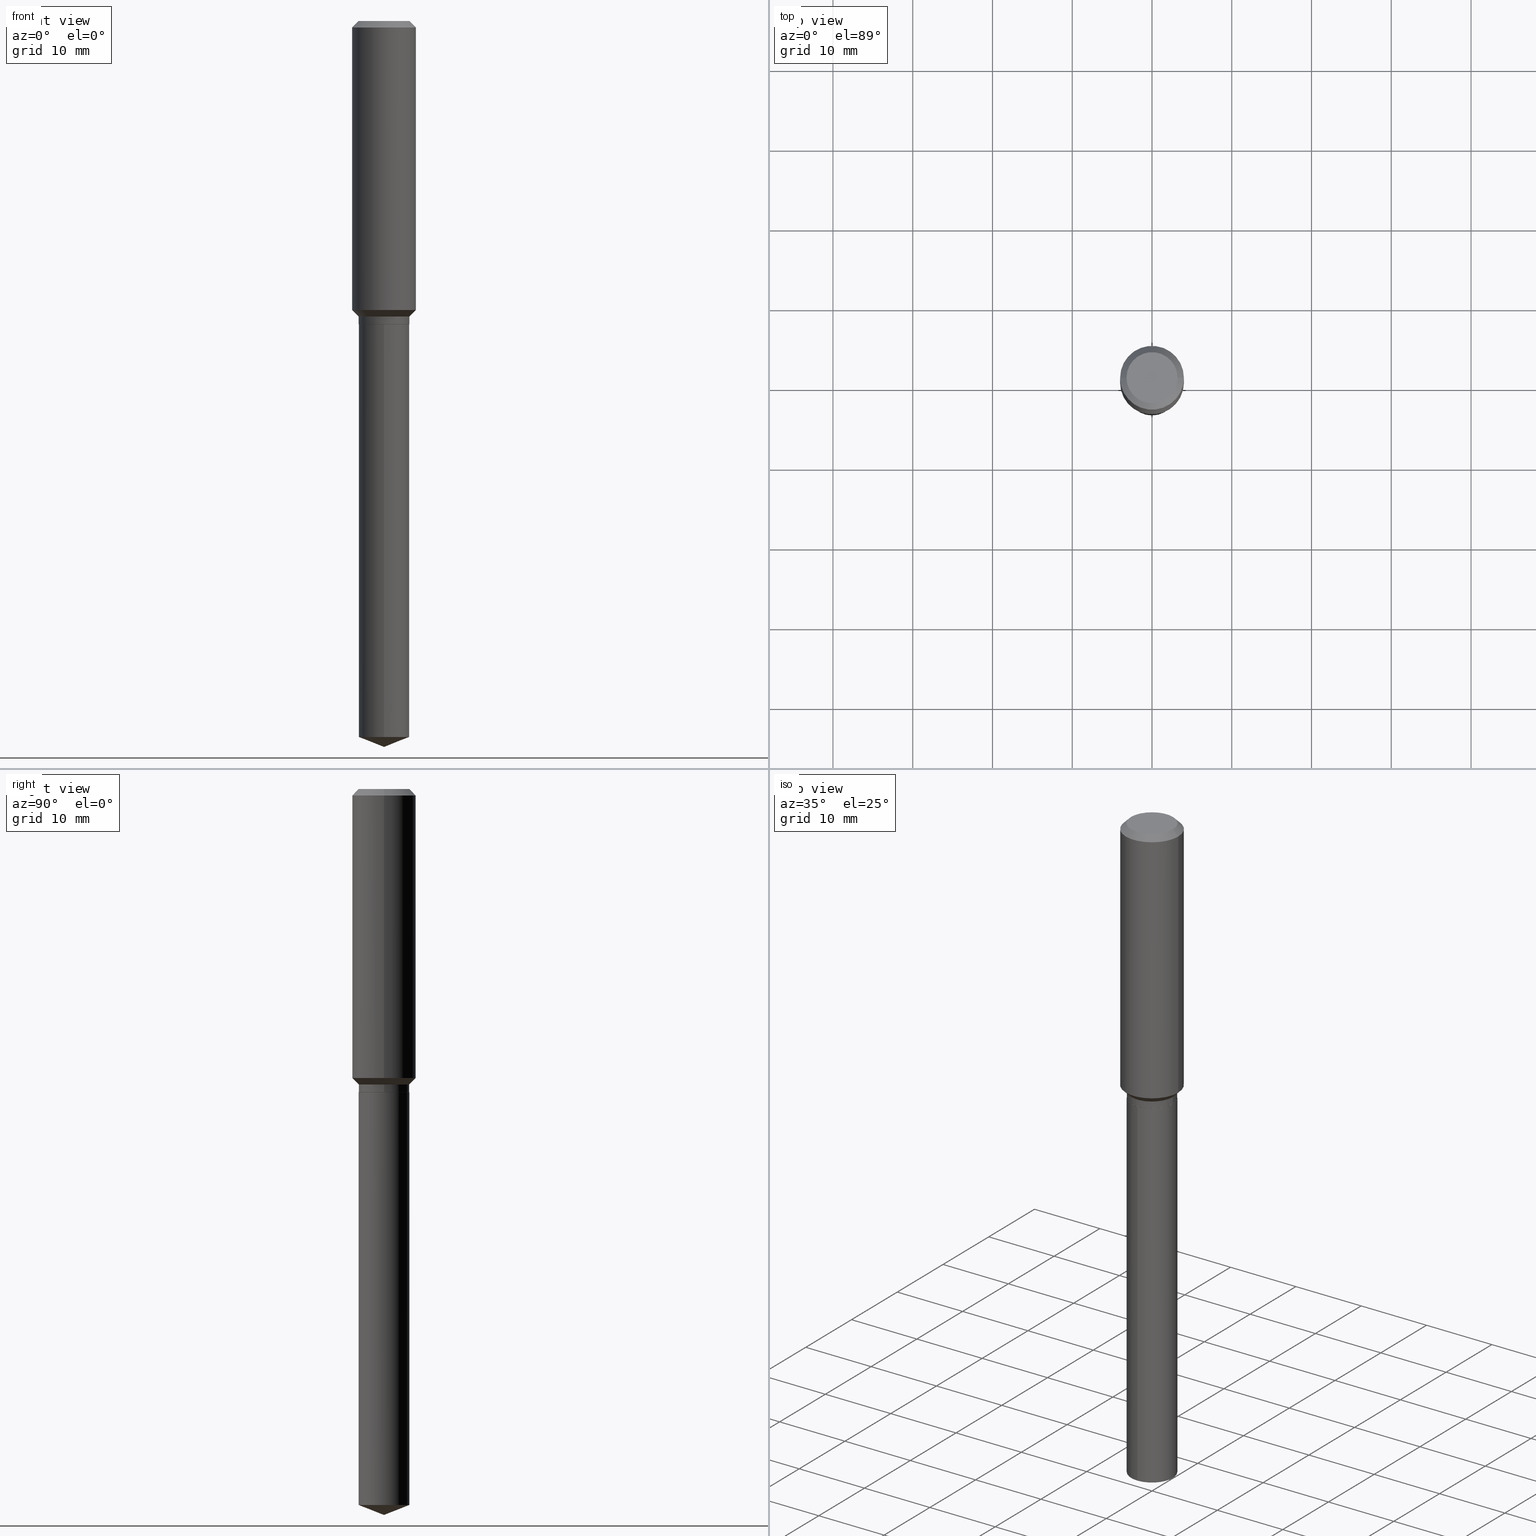
[diagram: canonical four-view strip — front | top / right | iso, engineering-drawing reading convention]
A machine part, canonical four-view strip (front | top / right | iso — engineering-drawing reading convention). The complete STEP part file that produces these views, byte-faithful:
ISO-10303-21;
HEADER;
FILE_DESCRIPTION (( 'STEP AP203' ),
    '1' );
FILE_NAME ('56446.STEP',
    '2024-04-24T17:53:05',
    ( '' ),
    ( '' ),
    'SwSTEP 2.0',
    'SolidWorks 2023',
    '' );
FILE_SCHEMA (( 'CONFIG_CONTROL_DESIGN' ));
ENDSEC;

DATA;
#1 = APPLICATION_PROTOCOL_DEFINITION ( 'international standard', 'config_control_design', 1994, #52 ) ;
#2 = DIRECTION ( 'NONE',  ( 1.000000000000000000, -6.982962677686262766E-15, 0.000000000000000000 ) ) ;
#3 = CARTESIAN_POINT ( 'NONE',  ( 0.1250000000000000000, -8.728703347107833388E-16, 6.095220969744919741E-30 ) ) ;
#4 = EDGE_CURVE ( 'NONE', #142, #254, #487, .T. ) ;
#5 = AXIS2_PLACEMENT_3D ( 'NONE', #301, #386, #200 ) ;
#6 =( CONVERSION_BASED_UNIT ( 'INCH', #85 ) LENGTH_UNIT ( ) NAMED_UNIT ( #192 ) );
#7 = AXIS2_PLACEMENT_3D ( 'NONE', #308, #453, #195 ) ;
#8 = DIRECTION ( 'NONE',  ( -2.445468806185136597E-29, 3.491481338843145583E-15, 1.000000000000000000 ) ) ;
#9 = CARTESIAN_POINT ( 'NONE',  ( -8.728703347106965641E-16, -0.1250000000000122957, -3.533761190548131204 ) ) ;
#10 = DIRECTION ( 'NONE',  ( 1.000000000000000000, -6.982962677686262766E-15, 0.000000000000000000 ) ) ;
#11 = CYLINDRICAL_SURFACE ( 'NONE', #148, 0.1575000000000000844 ) ;
#12 = LINE ( 'NONE', #171, #389 ) ;
#13 = ADVANCED_FACE ( 'NONE', ( #462 ), #449, .T. ) ;
#14 = CC_DESIGN_APPROVAL ( #280, ( #43 ) ) ;
#15 = LOCAL_TIME ( 13, 53, 5.000000000000000000, #94 ) ;
#16 = DIRECTION ( 'NONE',  ( -2.445483652818804664E-29, 3.491460077618715012E-15, 1.000000000000000000 ) ) ;
#17 = APPROVAL_ROLE ( '' ) ;
#18 = DIRECTION ( 'NONE',  ( 1.000000000000000000, -6.982962677686267499E-15, 0.000000000000000000 ) ) ;
#19 = EDGE_LOOP ( 'NONE', ( #344, #110, #176, #313 ) ) ;
#20 = CC_DESIGN_PERSON_AND_ORGANIZATION_ASSIGNMENT ( #357, #58, ( #194 ) ) ;
#21 = CARTESIAN_POINT ( 'NONE',  ( 3.658176787172346501E-29, -5.222906934775461847E-15, -1.495900000000000230 ) ) ;
#22 = CIRCLE ( 'NONE', #147, 0.1250000000000000000 ) ;
#23 = AXIS2_PLACEMENT_3D ( 'NONE', #465, #331, #98 ) ;
#24 = VERTEX_POINT ( 'NONE', #260 ) ;
#25 = DIRECTION ( 'NONE',  ( -2.445468806185136597E-29, 3.491481338843145583E-15, 1.000000000000000000 ) ) ;
#26 = ORIENTED_EDGE ( 'NONE', *, *, #454, .T. ) ;
#27 = DIRECTION ( 'NONE',  ( -2.445468806185136597E-29, 3.491481338843145583E-15, 1.000000000000000000 ) ) ;
#28 = EDGE_CURVE ( 'NONE', #429, #254, #22, .T. ) ;
#29 = ORIENTED_EDGE ( 'NONE', *, *, #237, .T. ) ;
#30 = EDGE_CURVE ( 'NONE', #295, #24, #93, .T. ) ;
#31 = DIRECTION ( 'NONE',  ( -2.445468806185136877E-29, 3.491481338843145188E-15, 1.000000000000000000 ) ) ;
#32 = VERTEX_POINT ( 'NONE', #238 ) ;
#33 = AXIS2_PLACEMENT_3D ( 'NONE', #168, #393, #141 ) ;
#34 = AXIS2_PLACEMENT_3D ( 'NONE', #293, #27, #407 ) ;
#35 = CARTESIAN_POINT ( 'NONE',  ( 0.000000000000000000, 0.000000000000000000, 0.000000000000000000 ) ) ;
#36 = ORIENTED_EDGE ( 'NONE', *, *, #161, .F. ) ;
#37 = DIRECTION ( 'NONE',  ( -2.445468806185136597E-29, 3.491481338843145583E-15, 1.000000000000000000 ) ) ;
#38 = PERSON_AND_ORGANIZATION ( #300, #483 ) ;
#39 = CIRCLE ( 'NONE', #340, 0.1250000000000000000 ) ;
#40 =( LENGTH_UNIT ( ) NAMED_UNIT ( * ) SI_UNIT ( $, .METRE. ) );
#41 = DATE_TIME_ROLE ( 'creation_date' ) ;
#42 = ORIENTED_EDGE ( 'NONE', *, *, #454, .F. ) ;
#43 = PRODUCT_DEFINITION ( 'UNKNOWN', '', #194, #323 ) ;
#44 = CARTESIAN_POINT ( 'NONE',  ( 3.566716253821021991E-29, -5.092325532702728647E-15, -1.458500000000000352 ) ) ;
#45 = AXIS2_PLACEMENT_3D ( 'NONE', #399, #95, #241 ) ;
#46 = PERSON_AND_ORGANIZATION ( #300, #483 ) ;
#47 = VERTEX_POINT ( 'NONE', #236 ) ;
#48 = VERTEX_POINT ( 'NONE', #204 ) ;
#49 = SECURITY_CLASSIFICATION_LEVEL ( 'unclassified' ) ;
#50 = ORIENTED_EDGE ( 'NONE', *, *, #144, .T. ) ;
#51 = ADVANCED_FACE ( 'NONE', ( #83 ), #124, .T. ) ;
#52 = APPLICATION_CONTEXT ( 'configuration controlled 3d designs of mechanical parts and assemblies' ) ;
#53 = ADVANCED_FACE ( 'NONE', ( #267 ), #224, .T. ) ;
#54 = DIRECTION ( 'NONE',  ( -2.445483652818804664E-29, 3.491460077618715012E-15, 1.000000000000000000 ) ) ;
#55 = DIRECTION ( 'NONE',  ( 1.000000000000000000, -6.982962677686262766E-15, 0.000000000000000000 ) ) ;
#56 = CLOSED_SHELL ( 'NONE', ( #51, #70, #288, #155, #102 ) ) ;
#57 = LOCAL_TIME ( 13, 53, 5.000000000000000000, #203 ) ;
#58 = PERSON_AND_ORGANIZATION_ROLE ( 'creator' ) ;
#59 = CARTESIAN_POINT ( 'NONE',  ( 0.1575000000000000011, -1.209798283909146741E-15, -0.03150000000000018757 ) ) ;
#60 = ORIENTED_EDGE ( 'NONE', *, *, #28, .F. ) ;
#61 = ADVANCED_BREP_SHAPE_REPRESENTATION ( '56446', ( #468, #159, #466 ), #131 ) ;
#62 = CARTESIAN_POINT ( 'NONE',  ( -8.728703347107465582E-16, -0.1250000000000052180, -1.496399999999999730 ) ) ;
#63 = EDGE_LOOP ( 'NONE', ( #277, #149 ) ) ;
#64 = FACE_OUTER_BOUND ( 'NONE', #19, .T. ) ;
#65 = CIRCLE ( 'NONE', #23, 0.1260000000000000009 ) ;
#66 = CONICAL_SURFACE ( 'NONE', #34, 0.1244999999999999996, 0.7853981633975507526 ) ;
#67 = ORIENTED_EDGE ( 'NONE', *, *, #315, .F. ) ;
#68 = CARTESIAN_POINT ( 'NONE',  ( 7.703226739483226095E-31, -1.099816621735597415E-16, -0.03150000000000018757 ) ) ;
#69 = ORIENTED_EDGE ( 'NONE', *, *, #207, .F. ) ;
#70 = ADVANCED_FACE ( 'NONE', ( #423 ), #305, .T. ) ;
#71 = CARTESIAN_POINT ( 'NONE',  ( -0.1250000000000000000, -4.269437814038970015E-15, -1.458500000000000352 ) ) ;
#72 = ORIENTED_EDGE ( 'NONE', *, *, #306, .F. ) ;
#73 = DIRECTION ( 'NONE',  ( -2.445483652818804384E-29, 3.491460077618715012E-15, 1.000000000000000000 ) ) ;
#74 = ORIENTED_EDGE ( 'NONE', *, *, #410, .F. ) ;
#75 = VECTOR ( 'NONE', #31, 39.37007874015748143 ) ;
#76 = CARTESIAN_POINT ( 'NONE',  ( 8.641733007948351542E-29, -1.233801793593342010E-14, -3.533761190548131648 ) ) ;
#77 = FACE_OUTER_BOUND ( 'NONE', #63, .T. ) ;
#78 = MECHANICAL_CONTEXT ( 'NONE', #417, 'mechanical' ) ;
#79 = VECTOR ( 'NONE', #235, 39.37007874015748854 ) ;
#80 = AXIS2_PLACEMENT_3D ( 'NONE', #339, #405, #189 ) ;
#81 = CC_DESIGN_PERSON_AND_ORGANIZATION_ASSIGNMENT ( #324, #101, ( #163 ) ) ;
#82 = DATE_AND_TIME ( #266, #297 ) ;
#83 = FACE_OUTER_BOUND ( 'NONE', #182, .T. ) ;
#84 = EDGE_CURVE ( 'NONE', #24, #441, #395, .T. ) ;
#85 = LENGTH_MEASURE_WITH_UNIT ( LENGTH_MEASURE( 0.02539999999999999897 ), #40 );
#86 = EDGE_LOOP ( 'NONE', ( #67, #408, #249 ) ) ;
#87 = APPROVAL_DATE_TIME ( #310, #280 ) ;
#88 = EDGE_LOOP ( 'NONE', ( #460, #190, #470, #373 ) ) ;
#89 = EDGE_LOOP ( 'NONE', ( #391, #217 ) ) ;
#90 = AXIS2_PLACEMENT_3D ( 'NONE', #320, #54, #291 ) ;
#91 = COORDINATED_UNIVERSAL_TIME_OFFSET ( 5, 0, .BEHIND. ) ;
#92 = AXIS2_PLACEMENT_3D ( 'NONE', #420, #385, #312 ) ;
#93 = LINE ( 'NONE', #455, #79 ) ;
#94 = COORDINATED_UNIVERSAL_TIME_OFFSET ( 5, 0, .BEHIND. ) ;
#95 = DIRECTION ( 'NONE',  ( -2.438088387897960049E-29, 3.491481338843145188E-15, 1.000000000000000000 ) ) ;
#96 = FACE_OUTER_BOUND ( 'NONE', #184, .T. ) ;
#97 = PERSON_AND_ORGANIZATION_ROLE ( 'design_supplier' ) ;
#98 = DIRECTION ( 'NONE',  ( 1.000000000000000000, -6.982962677686265922E-15, 4.876281427513067258E-29 ) ) ;
#99 = VECTOR ( 'NONE', #150, 39.37007874015748143 ) ;
#100 = EDGE_LOOP ( 'NONE', ( #69, #26, #482, #463 ) ) ;
#101 = PERSON_AND_ORGANIZATION_ROLE ( 'classification_officer' ) ;
#102 = ADVANCED_FACE ( 'NONE', ( #485 ), #457, .F. ) ;
#103 = DIRECTION ( 'NONE',  ( -6.982962677686265922E-15, -1.000000000000000000, 4.370956789862821150E-15 ) ) ;
#104 = ORIENTED_EDGE ( 'NONE', *, *, #350, .T. ) ;
#105 = DIRECTION ( 'NONE',  ( -2.445468806185136597E-29, 3.491481338843145583E-15, 1.000000000000000000 ) ) ;
#106 = ORIENTED_EDGE ( 'NONE', *, *, #112, .F. ) ;
#107 = CYLINDRICAL_SURFACE ( 'NONE', #125, 0.1250000000000000000 ) ;
#108 = EDGE_CURVE ( 'NONE', #254, #47, #353, .T. ) ;
#109 = AXIS2_PLACEMENT_3D ( 'NONE', #68, #450, #481 ) ;
#110 = ORIENTED_EDGE ( 'NONE', *, *, #410, .T. ) ;
#111 = APPROVAL_PERSON_ORGANIZATION ( #461, #294, #234 ) ;
#112 = EDGE_CURVE ( 'NONE', #215, #411, #444, .T. ) ;
#113 = DIRECTION ( 'NONE',  ( -2.445468806185136877E-29, 3.491481338843145188E-15, 1.000000000000000000 ) ) ;
#114 = ORIENTED_EDGE ( 'NONE', *, *, #221, .T. ) ;
#115 = CARTESIAN_POINT ( 'NONE',  ( -0.1244999999999999996, -4.337377742249447816E-15, -1.496400000000000174 ) ) ;
#116 = EDGE_LOOP ( 'NONE', ( #284, #205, #136, #367 ) ) ;
#117 = CARTESIAN_POINT ( 'NONE',  ( -0.1260000000000000009, 9.348441284752484904E-16, 3.860086710906114178E-18 ) ) ;
#118 = VECTOR ( 'NONE', #245, 39.37007874015748143 ) ;
#119 = AXIS2_PLACEMENT_3D ( 'NONE', #261, #296, #191 ) ;
#120 = CARTESIAN_POINT ( 'NONE',  ( -0.1250000000000000000, 8.881784197001252323E-16, -6.148668862818632227E-30 ) ) ;
#121 = CARTESIAN_POINT ( 'NONE',  ( 0.1575000000000000011, -1.190510096822576026E-15, -0.03150000000000018757 ) ) ;
#122 = CC_DESIGN_PERSON_AND_ORGANIZATION_ASSIGNMENT ( #38, #424, ( #404 ) ) ;
#123 = DIRECTION ( 'NONE',  ( 0.7071067811865453523, -7.319954787623248157E-15, -0.7071067811865496822 ) ) ;
#124 = CYLINDRICAL_SURFACE ( 'NONE', #348, 0.1250000000000000000 ) ;
#125 = AXIS2_PLACEMENT_3D ( 'NONE', #35, #37, #379 ) ;
#126 = ORIENTED_EDGE ( 'NONE', *, *, #321, .T. ) ;
#127 = COORDINATED_UNIVERSAL_TIME_OFFSET ( 5, 0, .BEHIND. ) ;
#128 = DIRECTION ( 'NONE',  ( 1.000000000000000000, -6.982962677686262766E-15, 0.000000000000000000 ) ) ;
#129 = DATE_AND_TIME ( #272, #228 ) ;
#130 = CARTESIAN_POINT ( 'NONE',  ( 3.566716253821021991E-29, -5.092325532702728647E-15, -1.458500000000000352 ) ) ;
#131 =( GEOMETRIC_REPRESENTATION_CONTEXT ( 3 ) GLOBAL_UNCERTAINTY_ASSIGNED_CONTEXT ( ( #478 ) ) GLOBAL_UNIT_ASSIGNED_CONTEXT ( ( #6, #265, #270 ) ) REPRESENTATION_CONTEXT ( 'NONE', 'WORKASPACE' ) );
#132 = CARTESIAN_POINT ( 'NONE',  ( 0.1250000000000000000, -6.095777269486245186E-15, -1.495900000000000230 ) ) ;
#133 = CARTESIAN_POINT ( 'NONE',  ( 7.703226739483226095E-31, -1.099816621735597415E-16, -0.03150000000000018757 ) ) ;
#134 = EDGE_CURVE ( 'NONE', #188, #32, #137, .T. ) ;
#135 = DIRECTION ( 'NONE',  ( 1.000000000000000000, -6.982962677686262766E-15, 0.000000000000000000 ) ) ;
#136 = ORIENTED_EDGE ( 'NONE', *, *, #201, .T. ) ;
#137 = CIRCLE ( 'NONE', #314, 0.1250000000000000000 ) ;
#138 = DIRECTION ( 'NONE',  ( -2.445468806185136597E-29, 3.491481338843145583E-15, 1.000000000000000000 ) ) ;
#139 = AXIS2_PLACEMENT_3D ( 'NONE', #210, #328, #397 ) ;
#140 = EDGE_LOOP ( 'NONE', ( #29, #126, #106, #292 ) ) ;
#141 = DIRECTION ( 'NONE',  ( 1.000000000000000000, -6.982962677686265922E-15, 0.000000000000000000 ) ) ;
#142 = VERTEX_POINT ( 'NONE', #132 ) ;
#143 = LINE ( 'NONE', #343, #226 ) ;
#144 = EDGE_CURVE ( 'NONE', #254, #429, #412, .T. ) ;
#145 = ORIENTED_EDGE ( 'NONE', *, *, #337, .F. ) ;
#146 = DIRECTION ( 'NONE',  ( -0.7071067811866199593, 7.493145998870616062E-15, 0.7071067811864750752 ) ) ;
#147 = AXIS2_PLACEMENT_3D ( 'NONE', #44, #342, #128 ) ;
#148 = AXIS2_PLACEMENT_3D ( 'NONE', #279, #469, #471 ) ;
#149 = ORIENTED_EDGE ( 'NONE', *, *, #207, .T. ) ;
#150 = DIRECTION ( 'NONE',  ( -2.445468806185136877E-29, 3.491481338843145188E-15, 1.000000000000000000 ) ) ;
#151 = ORIENTED_EDGE ( 'NONE', *, *, #255, .F. ) ;
#152 = ADVANCED_FACE ( 'NONE', ( #248 ), #438, .F. ) ;
#153 = DIRECTION ( 'NONE',  ( -6.982962677686265922E-15, -1.000000000000000000, 4.370956789862821150E-15 ) ) ;
#154 = CARTESIAN_POINT ( 'NONE',  ( 0.000000000000000000, 0.000000000000000000, 0.000000000000000000 ) ) ;
#155 = ADVANCED_FACE ( 'NONE', ( #325 ), #283, .T. ) ;
#156 = DIRECTION ( 'NONE',  ( -6.982962677686265922E-15, -1.000000000000000000, 4.370956789862821150E-15 ) ) ;
#157 = VECTOR ( 'NONE', #250, 39.37007874015748143 ) ;
#158 = AXIS2_PLACEMENT_3D ( 'NONE', #21, #430, #135 ) ;
#159 = MANIFOLD_SOLID_BREP ( 'Body-Move/Copy2[2]', #381 ) ;
#160 = PERSON_AND_ORGANIZATION ( #300, #483 ) ;
#161 = EDGE_CURVE ( 'NONE', #429, #388, #175, .T. ) ;
#162 = DIRECTION ( 'NONE',  ( -6.982962677686265922E-15, -1.000000000000000000, 4.370956789862821150E-15 ) ) ;
#163 = SECURITY_CLASSIFICATION ( '', '', #49 ) ;
#164 = CARTESIAN_POINT ( 'NONE',  ( 0.1250000000000000000, -5.965195867413511986E-15, -1.458500000000000352 ) ) ;
#165 = CC_DESIGN_PERSON_AND_ORGANIZATION_ASSIGNMENT ( #46, #459, ( #43 ) ) ;
#166 = DIRECTION ( 'NONE',  ( 1.000000000000000000, 0.000000000000000000, 0.000000000000000000 ) ) ;
#167 = ORIENTED_EDGE ( 'NONE', *, *, #337, .T. ) ;
#168 = CARTESIAN_POINT ( 'NONE',  ( 7.703226739483226095E-31, -1.099816621735597415E-16, -0.03150000000000018757 ) ) ;
#169 = VECTOR ( 'NONE', #378, 39.37007874015748143 ) ;
#170 = APPROVAL_DATE_TIME ( #239, #345 ) ;
#171 = CARTESIAN_POINT ( 'NONE',  ( -0.1575000000000000011, 9.898349595620272334E-16, -0.03150000000000018757 ) ) ;
#172 = CC_DESIGN_DATE_AND_TIME_ASSIGNMENT ( #177, #274, ( #163 ) ) ;
#173 = PERSON_AND_ORGANIZATION ( #300, #483 ) ;
#174 = CARTESIAN_POINT ( 'NONE',  ( 3.566716253821021991E-29, -5.092325532702728647E-15, -1.458500000000000352 ) ) ;
#175 = LINE ( 'NONE', #440, #118 ) ;
#176 = ORIENTED_EDGE ( 'NONE', *, *, #144, .F. ) ;
#177 = DATE_AND_TIME ( #464, #361 ) ;
#178 = CARTESIAN_POINT ( 'NONE',  ( 3.659399521575438742E-29, -5.224652675444883351E-15, -1.496400000000000174 ) ) ;
#179 = EDGE_LOOP ( 'NONE', ( #257, #369 ) ) ;
#180 = ADVANCED_FACE ( 'NONE', ( #394 ), #489, .T. ) ;
#181 = DIRECTION ( 'NONE',  ( -2.445483652818804664E-29, 3.491460077618715012E-15, 1.000000000000000000 ) ) ;
#182 = EDGE_LOOP ( 'NONE', ( #332, #275, #72, #273 ) ) ;
#183 = CARTESIAN_POINT ( 'NONE',  ( 8.762167928049776641E-29, -1.250990145810785612E-14, -3.583000000000000185 ) ) ;
#184 = EDGE_LOOP ( 'NONE', ( #443, #375, #356 ) ) ;
#185 = CARTESIAN_POINT ( 'NONE',  ( 3.659399521575438742E-29, -5.224652675444883351E-15, -1.496400000000000174 ) ) ;
#186 = AXIS2_PLACEMENT_3D ( 'NONE', #130, #8, #10 ) ;
#187 = AXIS2_PLACEMENT_3D ( 'NONE', #178, #476, #467 ) ;
#188 = VERTEX_POINT ( 'NONE', #359 ) ;
#189 = DIRECTION ( 'NONE',  ( 1.000000000000000000, -6.982962677686267499E-15, 0.000000000000000000 ) ) ;
#190 = ORIENTED_EDGE ( 'NONE', *, *, #335, .T. ) ;
#191 = DIRECTION ( 'NONE',  ( 1.000000000000000000, -6.982962677686266711E-15, 4.876176775795935793E-29 ) ) ;
#192 = DIMENSIONAL_EXPONENTS ( 1.000000000000000000, 0.000000000000000000, 0.000000000000000000, 0.000000000000000000, 0.000000000000000000, 0.000000000000000000, 0.000000000000000000 ) ;
#193 = PLANE ( 'NONE',  #92 ) ;
#194 = PRODUCT_DEFINITION_FORMATION_WITH_SPECIFIED_SOURCE ( 'ANY', '', #404, .NOT_KNOWN. ) ;
#195 = DIRECTION ( 'NONE',  ( 1.000000000000000000, -6.982962677686265922E-15, 4.876281427513067258E-29 ) ) ;
#196 = CC_DESIGN_DATE_AND_TIME_ASSIGNMENT ( #82, #41, ( #43 ) ) ;
#197 = APPROVAL_STATUS ( 'not_yet_approved' ) ;
#198 = DIRECTION ( 'NONE',  ( -6.982962677686265922E-15, -1.000000000000000000, 4.370956789862821150E-15 ) ) ;
#199 = CALENDAR_DATE ( 2024, 24, 4 ) ;
#200 = DIRECTION ( 'NONE',  ( 6.982962677686265922E-15, 1.000000000000000000, -3.491460077618715012E-15 ) ) ;
#201 = EDGE_CURVE ( 'NONE', #441, #32, #362, .T. ) ;
#202 = VECTOR ( 'NONE', #304, 39.37007874015748143 ) ;
#203 = COORDINATED_UNIVERSAL_TIME_OFFSET ( 5, 0, .BEHIND. ) ;
#204 = CARTESIAN_POINT ( 'NONE',  ( 0.1260000000000000009, -1.027466422270894443E-15, 3.860086710919128072E-18 ) ) ;
#205 = ORIENTED_EDGE ( 'NONE', *, *, #84, .T. ) ;
#206 = FACE_OUTER_BOUND ( 'NONE', #88, .T. ) ;
#207 = EDGE_CURVE ( 'NONE', #48, #406, #65, .T. ) ;
#208 = DIRECTION ( 'NONE',  ( -2.445483652818804664E-29, 3.491460077618715012E-15, 1.000000000000000000 ) ) ;
#209 = VECTOR ( 'NONE', #113, 39.37007874015748143 ) ;
#210 = CARTESIAN_POINT ( 'NONE',  ( 7.703226739483226095E-31, -1.099816621735597415E-16, -0.03150000000000018757 ) ) ;
#211 = PERSON_AND_ORGANIZATION ( #300, #483 ) ;
#212 = CARTESIAN_POINT ( 'NONE',  ( 3.487238517620005590E-29, -4.978852389190326971E-15, -1.426000000000000378 ) ) ;
#213 = ORIENTED_EDGE ( 'NONE', *, *, #371, .T. ) ;
#214 = CARTESIAN_POINT ( 'NONE',  ( 0.1250000000000000000, -5.965195867413511986E-15, -1.458500000000000352 ) ) ;
#215 = VERTEX_POINT ( 'NONE', #59 ) ;
#216 = CARTESIAN_POINT ( 'NONE',  ( -0.1244999999999999996, -4.340026969423559017E-15, -1.496400000000000174 ) ) ;
#217 = ORIENTED_EDGE ( 'NONE', *, *, #350, .F. ) ;
#218 = DIRECTION ( 'NONE',  ( 0.7071067811866199593, -2.468850131083015945E-15, 0.7071067811864750752 ) ) ;
#219 = ORIENTED_EDGE ( 'NONE', *, *, #264, .T. ) ;
#220 = CARTESIAN_POINT ( 'NONE',  ( 3.658176787172346501E-29, -5.222906934775461847E-15, -1.495900000000000230 ) ) ;
#221 = EDGE_CURVE ( 'NONE', #406, #411, #12, .T. ) ;
#222 = EDGE_LOOP ( 'NONE', ( #50, #446, #329, #251 ) ) ;
#223 = CARTESIAN_POINT ( 'NONE',  ( -0.1575000000000000844, 1.119104808822158392E-15, -7.747322767151481189E-30 ) ) ;
#224 = CONICAL_SURFACE ( 'NONE', #186, 0.1250000000000000000, 0.7853981633974509435 ) ;
#225 = AXIS2_PLACEMENT_3D ( 'NONE', #243, #16, #336 ) ;
#226 = VECTOR ( 'NONE', #218, 39.37007874015748143 ) ;
#227 = EDGE_LOOP ( 'NONE', ( #427, #167, #439, #290 ) ) ;
#228 = LOCAL_TIME ( 13, 53, 5.000000000000000000, #127 ) ;
#229 = FACE_OUTER_BOUND ( 'NONE', #100, .T. ) ;
#230 = ADVANCED_FACE ( 'NONE', ( #322 ), #354, .T. ) ;
#231 = CARTESIAN_POINT ( 'NONE',  ( 0.000000000000000000, 0.000000000000000000, 0.000000000000000000 ) ) ;
#232 = VECTOR ( 'NONE', #123, 39.37007874015748143 ) ;
#233 = APPROVAL_PERSON_ORGANIZATION ( #173, #345, #17 ) ;
#234 = APPROVAL_ROLE ( '' ) ;
#235 = DIRECTION ( 'NONE',  ( 6.611014441532045290E-15, 0.9304175679820241296, 0.3665012267242979127 ) ) ;
#236 = CARTESIAN_POINT ( 'NONE',  ( 0.1575000000000001676, -6.078669010925914451E-15, -1.426000000000000378 ) ) ;
#237 = EDGE_CURVE ( 'NONE', #47, #388, #316, .T. ) ;
#238 = CARTESIAN_POINT ( 'NONE',  ( -8.728703347107465582E-16, -0.1250000000000052180, -1.496399999999999730 ) ) ;
#239 = DATE_AND_TIME ( #327, #15 ) ;
#240 = DIRECTION ( 'NONE',  ( -6.982962677686265922E-15, -1.000000000000000000, 3.498627837350086264E-15 ) ) ;
#241 = DIRECTION ( 'NONE',  ( 1.000000000000000000, -6.982962677686265922E-15, 4.876176775795935793E-29 ) ) ;
#242 = ADVANCED_FACE ( 'NONE', ( #206 ), #11, .T. ) ;
#243 = CARTESIAN_POINT ( 'NONE',  ( -8.751673825769712260E-28, 1.249491249005610537E-13, 35.78707874015748303 ) ) ;
#244 = CIRCLE ( 'NONE', #278, 0.1244999999999999996 ) ;
#245 = DIRECTION ( 'NONE',  ( -0.7071067811865493491, 7.493145998870360471E-15, 0.7071067811865456854 ) ) ;
#246 = EDGE_LOOP ( 'NONE', ( #42, #398, #114, #219 ) ) ;
#247 = SHAPE_DEFINITION_REPRESENTATION ( #309, #61 ) ;
#248 = FACE_OUTER_BOUND ( 'NONE', #89, .T. ) ;
#249 = ORIENTED_EDGE ( 'NONE', *, *, #370, .F. ) ;
#250 = DIRECTION ( 'NONE',  ( -2.445483652818804384E-29, 3.491460077618715012E-15, 1.000000000000000000 ) ) ;
#251 = ORIENTED_EDGE ( 'NONE', *, *, #108, .F. ) ;
#252 = CARTESIAN_POINT ( 'NONE',  ( 0.1575000000000000844, -1.099816621735587677E-15, 7.679978421878603638E-30 ) ) ;
#253 = CIRCLE ( 'NONE', #413, 0.1575000000000000011 ) ;
#254 = VERTEX_POINT ( 'NONE', #214 ) ;
#255 = EDGE_CURVE ( 'NONE', #435, #142, #396, .T. ) ;
#256 = CARTESIAN_POINT ( 'NONE',  ( 3.659399521575438742E-29, -5.224652675444883351E-15, -1.496400000000000174 ) ) ;
#257 = ORIENTED_EDGE ( 'NONE', *, *, #306, .T. ) ;
#258 = ADVANCED_FACE ( 'NONE', ( #433 ), #286, .T. ) ;
#259 = LINE ( 'NONE', #299, #377 ) ;
#260 = CARTESIAN_POINT ( 'NONE',  ( 8.881784197002114154E-16, 0.1249999999999876349, -3.533761190548132092 ) ) ;
#261 = CARTESIAN_POINT ( 'NONE',  ( 0.000000000000000000, 0.000000000000000000, 0.000000000000000000 ) ) ;
#262 = AXIS2_PLACEMENT_3D ( 'NONE', #364, #366, #358 ) ;
#263 = DIRECTION ( 'NONE',  ( 1.000000000000000000, -6.982962677686266711E-15, 0.000000000000000000 ) ) ;
#264 = EDGE_CURVE ( 'NONE', #411, #215, #253, .T. ) ;
#265 =( NAMED_UNIT ( * ) PLANE_ANGLE_UNIT ( ) SI_UNIT ( $, .RADIAN. ) );
#266 = CALENDAR_DATE ( 2024, 24, 4 ) ;
#267 = FACE_OUTER_BOUND ( 'NONE', #402, .T. ) ;
#268 = AXIS2_PLACEMENT_3D ( 'NONE', #154, #271, #303 ) ;
#269 = APPROVAL_PERSON_ORGANIZATION ( #160, #280, #347 ) ;
#270 =( NAMED_UNIT ( * ) SI_UNIT ( $, .STERADIAN. ) SOLID_ANGLE_UNIT ( ) );
#271 = DIRECTION ( 'NONE',  ( -2.445468806185136597E-29, 3.491481338843145583E-15, 1.000000000000000000 ) ) ;
#272 = CALENDAR_DATE ( 2024, 24, 4 ) ;
#273 = ORIENTED_EDGE ( 'NONE', *, *, #201, .F. ) ;
#274 = DATE_TIME_ROLE ( 'classification_date' ) ;
#275 = ORIENTED_EDGE ( 'NONE', *, *, #418, .T. ) ;
#276 = AXIS2_PLACEMENT_3D ( 'NONE', #174, #105, #55 ) ;
#277 = ORIENTED_EDGE ( 'NONE', *, *, #447, .T. ) ;
#278 = AXIS2_PLACEMENT_3D ( 'NONE', #256, #409, #263 ) ;
#279 = CARTESIAN_POINT ( 'NONE',  ( 0.000000000000000000, 0.000000000000000000, 0.000000000000000000 ) ) ;
#280 = APPROVAL ( #318, 'UNSPECIFIED' ) ;
#281 = APPROVAL_STATUS ( 'not_yet_approved' ) ;
#282 = DIRECTION ( 'NONE',  ( -2.445468806185136597E-29, 3.491481338843145583E-15, 1.000000000000000000 ) ) ;
#283 = CYLINDRICAL_SURFACE ( 'NONE', #90, 0.1250000000000000000 ) ;
#284 = ORIENTED_EDGE ( 'NONE', *, *, #418, .F. ) ;
#285 = VECTOR ( 'NONE', #317, 39.37007874015748143 ) ;
#286 = CONICAL_SURFACE ( 'NONE', #187, 0.1244999999999999996, 0.7853981633975507526 ) ;
#287 = CC_DESIGN_APPROVAL ( #345, ( #163 ) ) ;
#288 = ADVANCED_FACE ( 'NONE', ( #96 ), #428, .T. ) ;
#289 = CARTESIAN_POINT ( 'NONE',  ( 3.659399521575438742E-29, -5.224652675444883351E-15, -1.496400000000000174 ) ) ;
#290 = ORIENTED_EDGE ( 'NONE', *, *, #371, .F. ) ;
#291 = DIRECTION ( 'NONE',  ( -6.982962677686265922E-15, -1.000000000000000000, 4.370956789862821150E-15 ) ) ;
#292 = ORIENTED_EDGE ( 'NONE', *, *, #326, .F. ) ;
#293 = CARTESIAN_POINT ( 'NONE',  ( 3.659399521575438742E-29, -5.224652675444883351E-15, -1.496400000000000174 ) ) ;
#294 = APPROVAL ( #197, 'UNSPECIFIED' ) ;
#295 = VERTEX_POINT ( 'NONE', #183 ) ;
#296 = DIRECTION ( 'NONE',  ( -2.445468806185136597E-29, 3.491481338843145583E-15, 1.000000000000000000 ) ) ;
#297 = LOCAL_TIME ( 13, 53, 5.000000000000000000, #352 ) ;
#298 = VERTEX_POINT ( 'NONE', #445 ) ;
#299 = CARTESIAN_POINT ( 'NONE',  ( 8.881784197001617172E-16, 0.1249999999999947681, -1.496400000000000841 ) ) ;
#300 = PERSON ( 'UNSPECIFIED', 'UNSPECIFIED', 'UNSPECIFIED', ('UNSPECIFIED'), ('UNSPECIFIED'), ('UNSPECIFIED') ) ;
#301 = CARTESIAN_POINT ( 'NONE',  ( 3.659399521575438742E-29, -5.224652675444883351E-15, -1.496400000000000174 ) ) ;
#302 = CYLINDRICAL_SURFACE ( 'NONE', #119, 0.1250000000000000000 ) ;
#303 = DIRECTION ( 'NONE',  ( 1.000000000000000000, -6.982962677686267499E-15, 4.876176775795936353E-29 ) ) ;
#304 = DIRECTION ( 'NONE',  ( -6.497071151882099326E-15, -0.9304175679820215761, 0.3665012267243045185 ) ) ;
#305 = CONICAL_SURFACE ( 'NONE', #472, 99.94676754583763056, 1.195550537616111519 ) ;
#306 = EDGE_CURVE ( 'NONE', #32, #188, #39, .T. ) ;
#307 = AXIS2_PLACEMENT_3D ( 'NONE', #76, #484, #156 ) ;
#308 = CARTESIAN_POINT ( 'NONE',  ( -9.439721640706201686E-47, 1.347742071746726764E-32, 3.860086710912459732E-18 ) ) ;
#309 = PRODUCT_DEFINITION_SHAPE ( 'NONE', 'NONE',  #43 ) ;
#310 = DATE_AND_TIME ( #199, #57 ) ;
#311 = ADVANCED_FACE ( 'NONE', ( #229 ), #422, .T. ) ;
#312 = DIRECTION ( 'NONE',  ( -1.000000000000000000, 6.982962677686265922E-15, -4.876176775795935793E-29 ) ) ;
#313 = ORIENTED_EDGE ( 'NONE', *, *, #4, .F. ) ;
#314 = AXIS2_PLACEMENT_3D ( 'NONE', #289, #208, #103 ) ;
#315 = EDGE_CURVE ( 'NONE', #295, #441, #376, .T. ) ;
#316 = CIRCLE ( 'NONE', #382, 0.1575000000000001676 ) ;
#317 = DIRECTION ( 'NONE',  ( 0.7071067811865493491, -2.468850131082276388E-15, 0.7071067811865456854 ) ) ;
#318 = APPROVAL_STATUS ( 'not_yet_approved' ) ;
#319 = DIRECTION ( 'NONE',  ( -2.445483652818804664E-29, 3.491460077618715012E-15, 1.000000000000000000 ) ) ;
#320 = CARTESIAN_POINT ( 'NONE',  ( 3.659399521575438742E-29, -5.224652675444883351E-15, -1.496400000000000174 ) ) ;
#321 = EDGE_CURVE ( 'NONE', #388, #411, #415, .T. ) ;
#322 = FACE_OUTER_BOUND ( 'NONE', #246, .T. ) ;
#323 = DESIGN_CONTEXT ( 'detailed design', #52, 'design' ) ;
#324 = PERSON_AND_ORGANIZATION ( #300, #483 ) ;
#325 = FACE_OUTER_BOUND ( 'NONE', #116, .T. ) ;
#326 = EDGE_CURVE ( 'NONE', #47, #215, #488, .T. ) ;
#327 = CALENDAR_DATE ( 2024, 24, 4 ) ;
#328 = DIRECTION ( 'NONE',  ( 2.445468806185136597E-29, -3.491481338843145583E-15, -1.000000000000000000 ) ) ;
#329 = ORIENTED_EDGE ( 'NONE', *, *, #237, .F. ) ;
#330 = CIRCLE ( 'NONE', #458, 0.1244999999999999996 ) ;
#331 = DIRECTION ( 'NONE',  ( -2.445468806185136597E-29, 3.491481338843145583E-15, 1.000000000000000000 ) ) ;
#332 = ORIENTED_EDGE ( 'NONE', *, *, #370, .T. ) ;
#333 = LINE ( 'NONE', #120, #75 ) ;
#334 = VERTEX_POINT ( 'NONE', #115 ) ;
#335 = EDGE_CURVE ( 'NONE', #388, #47, #473, .T. ) ;
#336 = DIRECTION ( 'NONE',  ( -6.982962677686265922E-15, -1.000000000000000000, 3.498627837350086264E-15 ) ) ;
#337 = EDGE_CURVE ( 'NONE', #334, #435, #442, .T. ) ;
#338 = EDGE_LOOP ( 'NONE', ( #74, #425, #400, #60 ) ) ;
#339 = CARTESIAN_POINT ( 'NONE',  ( 3.487238517620005590E-29, -4.978852389190326971E-15, -1.426000000000000378 ) ) ;
#340 = AXIS2_PLACEMENT_3D ( 'NONE', #185, #181, #153 ) ;
#341 = CC_DESIGN_APPROVAL ( #294, ( #194 ) ) ;
#342 = DIRECTION ( 'NONE',  ( -2.445468806185136597E-29, 3.491481338843145583E-15, 1.000000000000000000 ) ) ;
#343 = CARTESIAN_POINT ( 'NONE',  ( 0.1244999999999999996, -6.094031528816823683E-15, -1.496400000000000174 ) ) ;
#344 = ORIENTED_EDGE ( 'NONE', *, *, #431, .T. ) ;
#345 = APPROVAL ( #281, 'UNSPECIFIED' ) ;
#346 = FACE_OUTER_BOUND ( 'NONE', #227, .T. ) ;
#347 = APPROVAL_ROLE ( '' ) ;
#348 = AXIS2_PLACEMENT_3D ( 'NONE', #355, #319, #198 ) ;
#349 = CIRCLE ( 'NONE', #307, 0.1250000000000000000 ) ;
#350 = EDGE_CURVE ( 'NONE', #334, #298, #330, .T. ) ;
#351 = CARTESIAN_POINT ( 'NONE',  ( 8.641733007948351542E-29, -1.233801793593342010E-14, -3.533761190548131648 ) ) ;
#352 = COORDINATED_UNIVERSAL_TIME_OFFSET ( 5, 0, .BEHIND. ) ;
#353 = LINE ( 'NONE', #164, #285 ) ;
#354 = CONICAL_SURFACE ( 'NONE', #139, 0.1575000000000000011, 0.7853981633974452814 ) ;
#355 = CARTESIAN_POINT ( 'NONE',  ( 3.659399521575438742E-29, -5.224652675444883351E-15, -1.496400000000000174 ) ) ;
#356 = ORIENTED_EDGE ( 'NONE', *, *, #84, .F. ) ;
#357 = PERSON_AND_ORGANIZATION ( #300, #483 ) ;
#358 = DIRECTION ( 'NONE',  ( 1.000000000000000000, -6.982962677686262766E-15, 0.000000000000000000 ) ) ;
#359 = CARTESIAN_POINT ( 'NONE',  ( 8.881784197002118098E-16, 0.1249999999999947681, -1.496400000000000841 ) ) ;
#360 = VECTOR ( 'NONE', #146, 39.37007874015748143 ) ;
#361 = LOCAL_TIME ( 13, 53, 5.000000000000000000, #91 ) ;
#362 = LINE ( 'NONE', #62, #157 ) ;
#363 = PRODUCT_RELATED_PRODUCT_CATEGORY ( 'detail', '', ( #404 ) ) ;
#364 = CARTESIAN_POINT ( 'NONE',  ( 3.566716253821021991E-29, -5.092325532702728647E-15, -1.458500000000000352 ) ) ;
#365 = ORIENTED_EDGE ( 'NONE', *, *, #108, .T. ) ;
#366 = DIRECTION ( 'NONE',  ( -2.445468806185136597E-29, 3.491481338843145583E-15, 1.000000000000000000 ) ) ;
#367 = ORIENTED_EDGE ( 'NONE', *, *, #134, .F. ) ;
#368 = CARTESIAN_POINT ( 'NONE',  ( 8.762123495044533825E-29, -1.250996508870033127E-14, -3.583000000000000185 ) ) ;
#369 = ORIENTED_EDGE ( 'NONE', *, *, #134, .T. ) ;
#370 = EDGE_CURVE ( 'NONE', #441, #24, #349, .T. ) ;
#371 = EDGE_CURVE ( 'NONE', #298, #142, #143, .T. ) ;
#372 = CARTESIAN_POINT ( 'NONE',  ( -0.1575000000000001676, -3.859747580368167001E-15, -1.426000000000000378 ) ) ;
#373 = ORIENTED_EDGE ( 'NONE', *, *, #264, .F. ) ;
#374 = DIRECTION ( 'NONE',  ( -2.445468806185136597E-29, 3.491481338843145583E-15, 1.000000000000000000 ) ) ;
#375 = ORIENTED_EDGE ( 'NONE', *, *, #315, .T. ) ;
#376 = LINE ( 'NONE', #368, #202 ) ;
#377 = VECTOR ( 'NONE', #73, 39.37007874015748143 ) ;
#378 = DIRECTION ( 'NONE',  ( -2.445468806185136877E-29, 3.491481338843145188E-15, 1.000000000000000000 ) ) ;
#379 = DIRECTION ( 'NONE',  ( 1.000000000000000000, -6.982962677686266711E-15, 4.876176775795935793E-29 ) ) ;
#380 = DIRECTION ( 'NONE',  ( 0.000000000000000000, 0.000000000000000000, 1.000000000000000000 ) ) ;
#381 = CLOSED_SHELL ( 'NONE', ( #426, #311, #13, #180, #419, #390, #53, #242, #230, #475, #152, #258 ) ) ;
#382 = AXIS2_PLACEMENT_3D ( 'NONE', #212, #138, #18 ) ;
#383 = LINE ( 'NONE', #121, #232 ) ;
#384 = DIRECTION ( 'NONE',  ( -2.445483652818804664E-29, 3.491460077618715012E-15, 1.000000000000000000 ) ) ;
#385 = DIRECTION ( 'NONE',  ( 2.438088387897960049E-29, -3.491481338843145188E-15, -1.000000000000000000 ) ) ;
#386 = DIRECTION ( 'NONE',  ( 2.445483652818804384E-29, -3.491460077618715012E-15, -1.000000000000000000 ) ) ;
#387 = APPLICATION_PROTOCOL_DEFINITION ( 'international standard', 'config_control_design', 1994, #417 ) ;
#388 = VERTEX_POINT ( 'NONE', #372 ) ;
#389 = VECTOR ( 'NONE', #401, 39.37007874015748143 ) ;
#390 = ADVANCED_FACE ( 'NONE', ( #452 ), #107, .T. ) ;
#391 = ORIENTED_EDGE ( 'NONE', *, *, #414, .F. ) ;
#392 = DIRECTION ( 'NONE',  ( -2.445483652818804664E-29, 3.491460077618715012E-15, 1.000000000000000000 ) ) ;
#393 = DIRECTION ( 'NONE',  ( -2.445468806185136597E-29, 3.491481338843145583E-15, 1.000000000000000000 ) ) ;
#394 = FACE_OUTER_BOUND ( 'NONE', #222, .T. ) ;
#395 = CIRCLE ( 'NONE', #456, 0.1250000000000000000 ) ;
#396 = CIRCLE ( 'NONE', #158, 0.1250000000000000000 ) ;
#397 = DIRECTION ( 'NONE',  ( -1.000000000000000000, 6.982962677686265922E-15, 0.000000000000000000 ) ) ;
#398 = ORIENTED_EDGE ( 'NONE', *, *, #447, .F. ) ;
#399 = CARTESIAN_POINT ( 'NONE',  ( 3.659399521575438742E-29, -5.224652675444883351E-15, -1.496400000000000174 ) ) ;
#400 = ORIENTED_EDGE ( 'NONE', *, *, #4, .T. ) ;
#401 = DIRECTION ( 'NONE',  ( -0.7071067811865453523, 2.468850131082234184E-15, -0.7071067811865496822 ) ) ;
#402 = EDGE_LOOP ( 'NONE', ( #36, #477, #365, #474 ) ) ;
#403 = CC_DESIGN_PERSON_AND_ORGANIZATION_ASSIGNMENT ( #211, #97, ( #194 ) ) ;
#404 = PRODUCT ( '56446', '56446', '', ( #78 ) ) ;
#405 = DIRECTION ( 'NONE',  ( -2.445468806185136597E-29, 3.491481338843145583E-15, 1.000000000000000000 ) ) ;
#406 = VERTEX_POINT ( 'NONE', #117 ) ;
#407 = DIRECTION ( 'NONE',  ( 1.000000000000000000, -6.982962677686266711E-15, 0.000000000000000000 ) ) ;
#408 = ORIENTED_EDGE ( 'NONE', *, *, #30, .T. ) ;
#409 = DIRECTION ( 'NONE',  ( -2.445468806185136597E-29, 3.491481338843145583E-15, 1.000000000000000000 ) ) ;
#410 = EDGE_CURVE ( 'NONE', #435, #429, #333, .T. ) ;
#411 = VERTEX_POINT ( 'NONE', #448 ) ;
#412 = CIRCLE ( 'NONE', #262, 0.1250000000000000000 ) ;
#413 = AXIS2_PLACEMENT_3D ( 'NONE', #133, #282, #432 ) ;
#414 = EDGE_CURVE ( 'NONE', #298, #334, #244, .T. ) ;
#415 = LINE ( 'NONE', #223, #99 ) ;
#416 = APPROVAL_DATE_TIME ( #129, #294 ) ;
#417 = APPLICATION_CONTEXT ( 'configuration controlled 3d designs of mechanical parts and assemblies' ) ;
#418 = EDGE_CURVE ( 'NONE', #24, #188, #259, .T. ) ;
#419 = ADVANCED_FACE ( 'NONE', ( #64 ), #302, .T. ) ;
#420 = CARTESIAN_POINT ( 'NONE',  ( -4.719860820353100843E-47, 6.738710358733633822E-33, 1.930043355456229866E-18 ) ) ;
#421 = CARTESIAN_POINT ( 'NONE',  ( -8.751673825769712260E-28, 1.249491249005610537E-13, 35.78707874015748303 ) ) ;
#422 = CONICAL_SURFACE ( 'NONE', #109, 0.1575000000000000011, 0.7853981633974452814 ) ;
#423 = FACE_OUTER_BOUND ( 'NONE', #86, .T. ) ;
#424 = PERSON_AND_ORGANIZATION_ROLE ( 'design_owner' ) ;
#425 = ORIENTED_EDGE ( 'NONE', *, *, #255, .T. ) ;
#426 = ADVANCED_FACE ( 'NONE', ( #346 ), #66, .T. ) ;
#427 = ORIENTED_EDGE ( 'NONE', *, *, #414, .T. ) ;
#428 = CONICAL_SURFACE ( 'NONE', #225, 99.94676754583763056, 1.195550537616111519 ) ;
#429 = VERTEX_POINT ( 'NONE', #71 ) ;
#430 = DIRECTION ( 'NONE',  ( -2.445468806185136597E-29, 3.491481338843145583E-15, 1.000000000000000000 ) ) ;
#431 = EDGE_CURVE ( 'NONE', #142, #435, #436, .T. ) ;
#432 = DIRECTION ( 'NONE',  ( 1.000000000000000000, -6.982962677686265922E-15, 0.000000000000000000 ) ) ;
#433 = FACE_OUTER_BOUND ( 'NONE', #480, .T. ) ;
#434 = AXIS2_PLACEMENT_3D ( 'NONE', #220, #374, #2 ) ;
#435 = VERTEX_POINT ( 'NONE', #490 ) ;
#436 = CIRCLE ( 'NONE', #434, 0.1250000000000000000 ) ;
#437 = CC_DESIGN_SECURITY_CLASSIFICATION ( #163, ( #194 ) ) ;
#438 = PLANE ( 'NONE',  #45 ) ;
#439 = ORIENTED_EDGE ( 'NONE', *, *, #431, .F. ) ;
#440 = CARTESIAN_POINT ( 'NONE',  ( -0.1250000000000000000, -4.204147113002603415E-15, -1.458500000000000352 ) ) ;
#441 = VERTEX_POINT ( 'NONE', #9 ) ;
#442 = LINE ( 'NONE', #216, #360 ) ;
#443 = ORIENTED_EDGE ( 'NONE', *, *, #30, .F. ) ;
#444 = CIRCLE ( 'NONE', #33, 0.1575000000000000011 ) ;
#445 = CARTESIAN_POINT ( 'NONE',  ( 0.1244999999999999996, -6.094031528816823683E-15, -1.496400000000000174 ) ) ;
#446 = ORIENTED_EDGE ( 'NONE', *, *, #161, .T. ) ;
#447 = EDGE_CURVE ( 'NONE', #406, #48, #451, .T. ) ;
#448 = CARTESIAN_POINT ( 'NONE',  ( -0.1575000000000000011, -1.425312216859784822E-15, -0.03150000000000018757 ) ) ;
#449 = CYLINDRICAL_SURFACE ( 'NONE', #268, 0.1575000000000000844 ) ;
#450 = DIRECTION ( 'NONE',  ( 2.445468806185136597E-29, -3.491481338843145583E-15, -1.000000000000000000 ) ) ;
#451 = CIRCLE ( 'NONE', #7, 0.1260000000000000009 ) ;
#452 = FACE_OUTER_BOUND ( 'NONE', #338, .T. ) ;
#453 = DIRECTION ( 'NONE',  ( -2.445468806185136597E-29, 3.491481338843145583E-15, 1.000000000000000000 ) ) ;
#454 = EDGE_CURVE ( 'NONE', #48, #215, #383, .T. ) ;
#455 = CARTESIAN_POINT ( 'NONE',  ( 8.762168317674783458E-29, -1.250990145810785612E-14, -3.583000000000000185 ) ) ;
#456 = AXIS2_PLACEMENT_3D ( 'NONE', #351, #392, #162 ) ;
#457 = PLANE ( 'NONE',  #5 ) ;
#458 = AXIS2_PLACEMENT_3D ( 'NONE', #486, #25, #479 ) ;
#459 = PERSON_AND_ORGANIZATION_ROLE ( 'creator' ) ;
#460 = ORIENTED_EDGE ( 'NONE', *, *, #321, .F. ) ;
#461 = PERSON_AND_ORGANIZATION ( #300, #483 ) ;
#462 = FACE_OUTER_BOUND ( 'NONE', #140, .T. ) ;
#463 = ORIENTED_EDGE ( 'NONE', *, *, #221, .F. ) ;
#464 = CALENDAR_DATE ( 2024, 24, 4 ) ;
#465 = CARTESIAN_POINT ( 'NONE',  ( -9.439721640706201686E-47, 1.347742071746726764E-32, 3.860086710912459732E-18 ) ) ;
#466 = AXIS2_PLACEMENT_3D ( 'NONE', #231, #380, #166 ) ;
#467 = DIRECTION ( 'NONE',  ( 1.000000000000000000, -6.982962677686266711E-15, 0.000000000000000000 ) ) ;
#468 = MANIFOLD_SOLID_BREP ( 'Body-Move/Copy2[1]', #56 ) ;
#469 = DIRECTION ( 'NONE',  ( -2.445468806185136597E-29, 3.491481338843145583E-15, 1.000000000000000000 ) ) ;
#470 = ORIENTED_EDGE ( 'NONE', *, *, #326, .T. ) ;
#471 = DIRECTION ( 'NONE',  ( 1.000000000000000000, -6.982962677686267499E-15, 4.876176775795936353E-29 ) ) ;
#472 = AXIS2_PLACEMENT_3D ( 'NONE', #421, #384, #240 ) ;
#473 = CIRCLE ( 'NONE', #80, 0.1575000000000001676 ) ;
#474 = ORIENTED_EDGE ( 'NONE', *, *, #335, .F. ) ;
#475 = ADVANCED_FACE ( 'NONE', ( #77 ), #193, .F. ) ;
#476 = DIRECTION ( 'NONE',  ( -2.445468806185136597E-29, 3.491481338843145583E-15, 1.000000000000000000 ) ) ;
#477 = ORIENTED_EDGE ( 'NONE', *, *, #28, .T. ) ;
#478 = UNCERTAINTY_MEASURE_WITH_UNIT (LENGTH_MEASURE( 1.000000000000000082E-05 ), #6, 'distance_accuracy_value', 'NONE');
#479 = DIRECTION ( 'NONE',  ( 1.000000000000000000, -6.982962677686266711E-15, 0.000000000000000000 ) ) ;
#480 = EDGE_LOOP ( 'NONE', ( #145, #104, #213, #151 ) ) ;
#481 = DIRECTION ( 'NONE',  ( -1.000000000000000000, 6.982962677686265922E-15, 0.000000000000000000 ) ) ;
#482 = ORIENTED_EDGE ( 'NONE', *, *, #112, .T. ) ;
#483 = ORGANIZATION ( 'UNSPECIFIED', 'UNSPECIFIED', '' ) ;
#484 = DIRECTION ( 'NONE',  ( -2.445483652818804664E-29, 3.491460077618715012E-15, 1.000000000000000000 ) ) ;
#485 = FACE_OUTER_BOUND ( 'NONE', #179, .T. ) ;
#486 = CARTESIAN_POINT ( 'NONE',  ( 3.659399521575438742E-29, -5.224652675444883351E-15, -1.496400000000000174 ) ) ;
#487 = LINE ( 'NONE', #3, #169 ) ;
#488 = LINE ( 'NONE', #252, #209 ) ;
#489 = CONICAL_SURFACE ( 'NONE', #276, 0.1250000000000000000, 0.7853981633974509435 ) ;
#490 = CARTESIAN_POINT ( 'NONE',  ( -0.1250000000000000000, -4.269437814038970015E-15, -1.495900000000000230 ) ) ;
ENDSEC;
END-ISO-10303-21;
